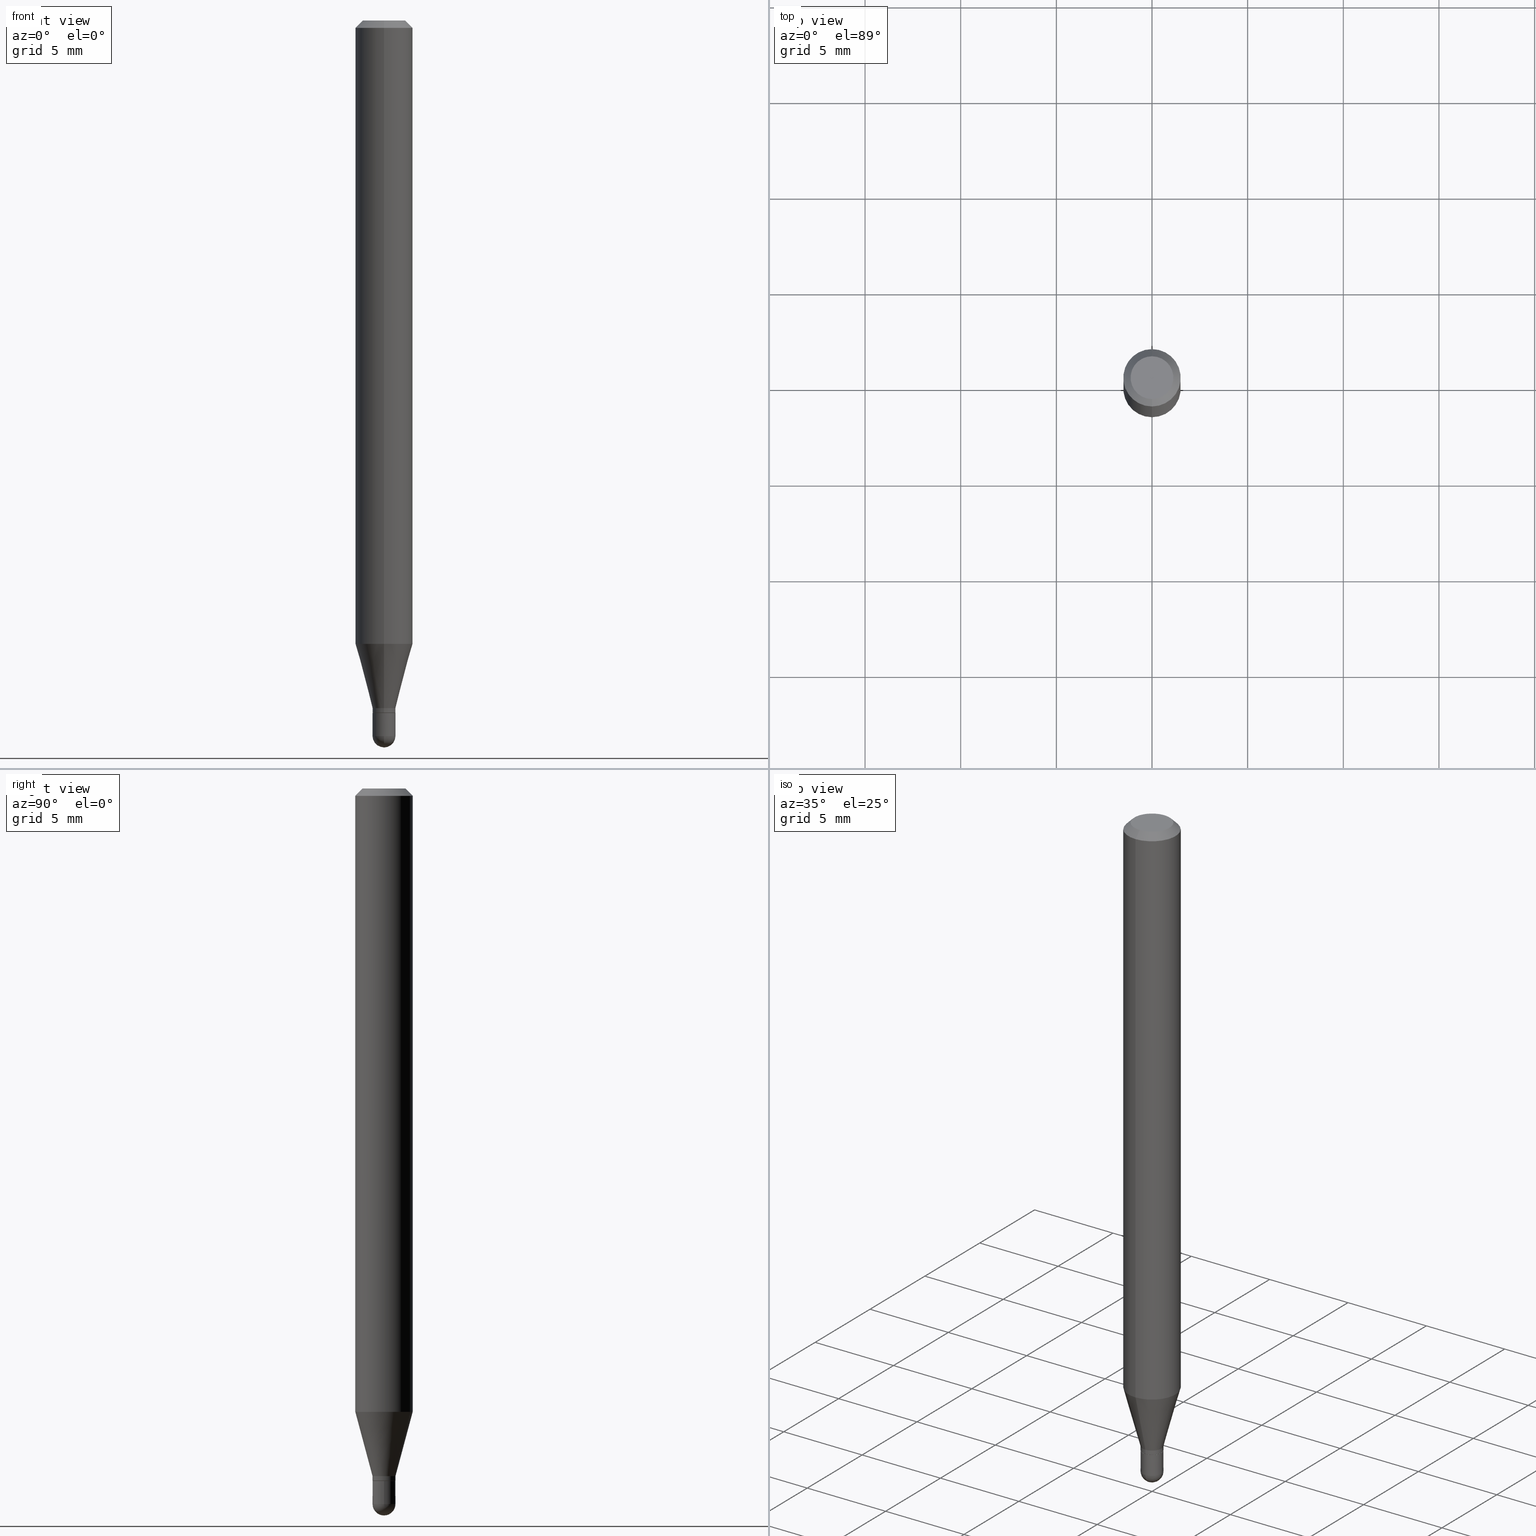
[diagram: canonical four-view strip — front | top / right | iso, engineering-drawing reading convention]
A machine part, canonical four-view strip (front | top / right | iso — engineering-drawing reading convention). The complete STEP part file that produces these views, byte-faithful:
ISO-10303-21;
HEADER;
FILE_DESCRIPTION (( 'STEP AP203' ),
    '1' );
FILE_NAME ('02917.STEP',
    '2024-03-07T21:41:53',
    ( '' ),
    ( '' ),
    'SwSTEP 2.0',
    'SolidWorks 2023',
    '' );
FILE_SCHEMA (( 'CONFIG_CONTROL_DESIGN' ));
ENDSEC;

DATA;
#1 =( NAMED_UNIT ( * ) PLANE_ANGLE_UNIT ( ) SI_UNIT ( $, .RADIAN. ) );
#2 = CC_DESIGN_DATE_AND_TIME_ASSIGNMENT ( #146, #310, ( #301 ) ) ;
#3 = EDGE_LOOP ( 'NONE', ( #392, #244 ) ) ;
#4 = EDGE_CURVE ( 'NONE', #314, #163, #479, .T. ) ;
#5 = DIRECTION ( 'NONE',  ( -2.445525843005388911E-29, 3.491399658870209934E-15, 1.000000000000000000 ) ) ;
#6 = AXIS2_PLACEMENT_3D ( 'NONE', #458, #332, #97 ) ;
#7 = CALENDAR_DATE ( 2024, 7, 3 ) ;
#8 = DIRECTION ( 'NONE',  ( -2.445525843005388911E-29, 3.491399658870209934E-15, 1.000000000000000000 ) ) ;
#9 = EDGE_CURVE ( 'NONE', #298, #210, #202, .T. ) ;
#10 = PERSON_AND_ORGANIZATION_ROLE ( 'design_owner' ) ;
#11 = FACE_OUTER_BOUND ( 'NONE', #59, .T. ) ;
#12 = PERSON_AND_ORGANIZATION ( #424, #39 ) ;
#13 = CARTESIAN_POINT ( 'NONE',  ( -1.647979191933610942E-16, -0.02360000000000497811, -1.424700000000000077 ) ) ;
#14 = AXIS2_PLACEMENT_3D ( 'NONE', #237, #496, #25 ) ;
#15 = CC_DESIGN_APPROVAL ( #149, ( #164 ) ) ;
#16 = CARTESIAN_POINT ( 'NONE',  ( 3.485363431451280039E-29, -4.975942793821823264E-15, -1.425199999999999800 ) ) ;
#17 = EDGE_LOOP ( 'NONE', ( #288, #414, #26, #112 ) ) ;
#18 = ORIENTED_EDGE ( 'NONE', *, *, #266, .T. ) ;
#19 = LINE ( 'NONE', #220, #268 ) ;
#20 = CARTESIAN_POINT ( 'NONE',  ( 3.460663620436925760E-29, -4.940679657267234078E-15, -1.415099999999999802 ) ) ;
#21 = ADVANCED_FACE ( 'NONE', ( #318 ), #484, .F. ) ;
#22 = EDGE_LOOP ( 'NONE', ( #194, #52, #208, #212 ) ) ;
#23 = ORIENTED_EDGE ( 'NONE', *, *, #465, .F. ) ;
#24 = PLANE ( 'NONE',  #6 ) ;
#25 = DIRECTION ( 'NONE',  ( -6.982962677686265922E-15, -1.000000000000000000, 3.491399658870209934E-15 ) ) ;
#26 = ORIENTED_EDGE ( 'NONE', *, *, #176, .F. ) ;
#27 = DIRECTION ( 'NONE',  ( 1.000000000000000000, -6.982962677686258033E-15, 0.000000000000000000 ) ) ;
#28 = CIRCLE ( 'NONE', #35, 0.02359999999999991965 ) ;
#29 = ORIENTED_EDGE ( 'NONE', *, *, #31, .T. ) ;
#30 = CARTESIAN_POINT ( 'NONE',  ( 3.485282142575056435E-29, -4.976059204119250988E-15, -1.425199999999999800 ) ) ;
#31 = EDGE_CURVE ( 'NONE', #331, #498, #355, .T. ) ;
#32 = DIRECTION ( 'NONE',  ( -6.982962677686266711E-15, -1.000000000000000000, 0.000000000000000000 ) ) ;
#33 = CARTESIAN_POINT ( 'NONE',  ( 0.000000000000000000, 0.000000000000000000, 0.000000000000000000 ) ) ;
#34 = CONICAL_SURFACE ( 'NONE', #311, 0.02359999999999991965, 0.2617993877991507401 ) ;
#35 = AXIS2_PLACEMENT_3D ( 'NONE', #129, #451, #410 ) ;
#36 = SPHERICAL_SURFACE ( 'NONE', #93, 0.02359999999999999598 ) ;
#37 = DIRECTION ( 'NONE',  ( -2.445525843005388911E-29, 3.491399658870209934E-15, 1.000000000000000000 ) ) ;
#38 = DIRECTION ( 'NONE',  ( -2.445525843005388911E-29, 3.491399658870209934E-15, 1.000000000000000000 ) ) ;
#39 = ORGANIZATION ( 'UNSPECIFIED', 'UNSPECIFIED', '' ) ;
#40 = COORDINATED_UNIVERSAL_TIME_OFFSET ( 5, 0, .BEHIND. ) ;
#41 = CYLINDRICAL_SURFACE ( 'NONE', #101, 0.05904999999999999832 ) ;
#42 = VERTEX_POINT ( 'NONE', #68 ) ;
#43 = CALENDAR_DATE ( 2024, 7, 3 ) ;
#44 = CARTESIAN_POINT ( 'NONE',  ( 0.02360000000000000292, -5.140857123312646447E-15, -1.425199999999999800 ) ) ;
#45 = EDGE_CURVE ( 'NONE', #367, #158, #387, .T. ) ;
#46 = DIRECTION ( 'NONE',  ( -6.982962677686265922E-15, -1.000000000000000000, 3.505890868245046092E-15 ) ) ;
#47 = ORIENTED_EDGE ( 'NONE', *, *, #198, .T. ) ;
#48 = CARTESIAN_POINT ( 'NONE',  ( 0.000000000000000000, 0.000000000000000000, 0.000000000000000000 ) ) ;
#49 = ORIENTED_EDGE ( 'NONE', *, *, #327, .F. ) ;
#50 = APPROVAL_ROLE ( '' ) ;
#51 = DIRECTION ( 'NONE',  ( -4.937700262164695559E-15, -0.7071067811865662245, 0.7071067811865289210 ) ) ;
#52 = ORIENTED_EDGE ( 'NONE', *, *, #122, .T. ) ;
#53 = CC_DESIGN_SECURITY_CLASSIFICATION ( #301, ( #164 ) ) ;
#54 = DIRECTION ( 'NONE',  ( 1.000000000000000000, -6.982962677686258033E-15, 0.000000000000000000 ) ) ;
#55 = ADVANCED_FACE ( 'NONE', ( #205 ), #133, .F. ) ;
#56 = ORIENTED_EDGE ( 'NONE', *, *, #425, .F. ) ;
#57 = EDGE_LOOP ( 'NONE', ( #324, #336, #168, #328 ) ) ;
#58 = DIRECTION ( 'NONE',  ( 1.000000000000000000, -6.982962677686258033E-15, 0.000000000000000000 ) ) ;
#59 = EDGE_LOOP ( 'NONE', ( #47, #295, #489, #379 ) ) ;
#60 = FACE_OUTER_BOUND ( 'NONE', #238, .T. ) ;
#61 = CARTESIAN_POINT ( 'NONE',  ( 4.123439461173743285E-16, 0.05904999999999994975, -0.01500000000000029955 ) ) ;
#62 = AXIS2_PLACEMENT_3D ( 'NONE', #468, #270, #265 ) ;
#63 = DIRECTION ( 'NONE',  ( -6.982962677686265922E-15, -1.000000000000000000, 0.000000000000000000 ) ) ;
#64 = CARTESIAN_POINT ( 'NONE',  ( -1.647979191933606997E-16, -0.02360000000000486015, -1.415099999999999802 ) ) ;
#65 = PRODUCT_RELATED_PRODUCT_CATEGORY ( 'detail', '', ( #117 ) ) ;
#66 = CIRCLE ( 'NONE', #357, 0.02359999999999992312 ) ;
#67 = DIRECTION ( 'NONE',  ( 1.000000000000000000, -6.982962677686265922E-15, 4.883557194083112901E-29 ) ) ;
#68 = CARTESIAN_POINT ( 'NONE',  ( -3.536586717851222218E-16, -0.04404999999999999888, 6.212774405424533259E-17 ) ) ;
#69 = CARTESIAN_POINT ( 'NONE',  ( 0.000000000000000000, 0.000000000000000000, 0.000000000000000000 ) ) ;
#70 = LOCAL_TIME ( 16, 41, 53.00000000000000000, #277 ) ;
#71 = VERTEX_POINT ( 'NONE', #374 ) ;
#72 = DATE_TIME_ROLE ( 'creation_date' ) ;
#73 = LINE ( 'NONE', #408, #250 ) ;
#74 = ORIENTED_EDGE ( 'NONE', *, *, #377, .T. ) ;
#75 = DIRECTION ( 'NONE',  ( -2.445525843005389191E-29, 3.491399658870209934E-15, 1.000000000000000000 ) ) ;
#76 = CALENDAR_DATE ( 2024, 7, 3 ) ;
#77 = CYLINDRICAL_SURFACE ( 'NONE', #434, 0.05904999999999999832 ) ;
#78 = ORIENTED_EDGE ( 'NONE', *, *, #473, .F. ) ;
#79 = APPROVAL_STATUS ( 'not_yet_approved' ) ;
#80 = DIRECTION ( 'NONE',  ( -6.982962677686266711E-15, -1.000000000000000000, 0.000000000000000000 ) ) ;
#81 = AXIS2_PLACEMENT_3D ( 'NONE', #364, #201, #483 ) ;
#82 = AXIS2_PLACEMENT_3D ( 'NONE', #258, #289, #54 ) ;
#83 = CALENDAR_DATE ( 2024, 7, 3 ) ;
#84 = CARTESIAN_POINT ( 'NONE',  ( 0.000000000000000000, 0.000000000000000000, 0.000000000000000000 ) ) ;
#85 = COORDINATED_UNIVERSAL_TIME_OFFSET ( 5, 0, .BEHIND. ) ;
#86 = DIRECTION ( 'NONE',  ( 1.839019923739603471E-15, 0.2588190451025254024, 0.9659258262890670910 ) ) ;
#87 = APPROVAL ( #195, 'UNSPECIFIED' ) ;
#88 = EDGE_CURVE ( 'NONE', #378, #367, #300, .T. ) ;
#89 = ORIENTED_EDGE ( 'NONE', *, *, #88, .F. ) ;
#90 = CARTESIAN_POINT ( 'NONE',  ( 3.598934624665149250E-29, -5.144096437892519397E-15, -1.472499999999999920 ) ) ;
#91 = CIRCLE ( 'NONE', #224, 0.02360000000000000292 ) ;
#92 = ORIENTED_EDGE ( 'NONE', *, *, #176, .T. ) ;
#93 = AXIS2_PLACEMENT_3D ( 'NONE', #184, #67, #426 ) ;
#94 = CARTESIAN_POINT ( 'NONE',  ( 3.600952817107612585E-29, -5.141206271446529958E-15, -1.472499999999999698 ) ) ;
#95 = DIRECTION ( 'NONE',  ( -6.982962677686265922E-15, -1.000000000000000000, 0.000000000000000000 ) ) ;
#96 = ORIENTED_EDGE ( 'NONE', *, *, #177, .T. ) ;
#97 = DIRECTION ( 'NONE',  ( -1.000000000000000000, 6.982962677686265922E-15, -4.876176775795935793E-29 ) ) ;
#98 = ORIENTED_EDGE ( 'NONE', *, *, #485, .T. ) ;
#99 = DIRECTION ( 'NONE',  ( 1.000000000000000000, -6.982962677686258033E-15, 0.000000000000000000 ) ) ;
#100 = ORIENTED_EDGE ( 'NONE', *, *, #160, .T. ) ;
#101 = AXIS2_PLACEMENT_3D ( 'NONE', #48, #275, #246 ) ;
#102 = LINE ( 'NONE', #61, #435 ) ;
#103 = CC_DESIGN_APPROVAL ( #326, ( #463 ) ) ;
#104 = FACE_OUTER_BOUND ( 'NONE', #369, .T. ) ;
#105 = FACE_OUTER_BOUND ( 'NONE', #22, .T. ) ;
#106 = MANIFOLD_SOLID_BREP ( 'Body-Move/Copy2[2]', #197 ) ;
#107 =( NAMED_UNIT ( * ) SI_UNIT ( $, .STERADIAN. ) SOLID_ANGLE_UNIT ( ) );
#108 = CIRCLE ( 'NONE', #476, 0.02360000000000000292 ) ;
#109 = DIRECTION ( 'NONE',  ( -2.445525843005388911E-29, 3.491399658870209934E-15, 1.000000000000000000 ) ) ;
#110 = AXIS2_PLACEMENT_3D ( 'NONE', #90, #174, #128 ) ;
#111 = AXIS2_PLACEMENT_3D ( 'NONE', #416, #368, #136 ) ;
#112 = ORIENTED_EDGE ( 'NONE', *, *, #45, .F. ) ;
#113 = COORDINATED_UNIVERSAL_TIME_OFFSET ( 5, 0, .BEHIND. ) ;
#114 = DIRECTION ( 'NONE',  ( -6.982962677686266711E-15, -1.000000000000000000, 0.000000000000000000 ) ) ;
#115 = APPROVAL_STATUS ( 'not_yet_approved' ) ;
#116 = CARTESIAN_POINT ( 'NONE',  ( 0.000000000000000000, 0.000000000000000000, 0.000000000000000000 ) ) ;
#117 = PRODUCT ( '02917', '02917', '', ( #316 ) ) ;
#118 = CYLINDRICAL_SURFACE ( 'NONE', #510, 0.02360000000000000292 ) ;
#119 = VECTOR ( 'NONE', #139, 39.37007874015748143 ) ;
#120 = ADVANCED_FACE ( 'NONE', ( #124 ), #401, .T. ) ;
#121 = DIRECTION ( 'NONE',  ( -6.982962677686265922E-15, -1.000000000000000000, 4.626330217890369336E-15 ) ) ;
#122 = EDGE_CURVE ( 'NONE', #314, #170, #272, .T. ) ;
#123 = VERTEX_POINT ( 'NONE', #13 ) ;
#124 = FACE_OUTER_BOUND ( 'NONE', #247, .T. ) ;
#125 = MANIFOLD_SOLID_BREP ( 'Body-Move/Copy2[1]', #207 ) ;
#126 = ORIENTED_EDGE ( 'NONE', *, *, #151, .T. ) ;
#127 = ORIENTED_EDGE ( 'NONE', *, *, #252, .F. ) ;
#128 = DIRECTION ( 'NONE',  ( -6.982962677686265922E-15, -1.000000000000000000, 0.000000000000000000 ) ) ;
#129 = CARTESIAN_POINT ( 'NONE',  ( 3.460663620436925760E-29, -4.940679657267234078E-15, -1.415099999999999802 ) ) ;
#130 = ADVANCED_FACE ( 'NONE', ( #243 ), #77, .T. ) ;
#131 = ORIENTED_EDGE ( 'NONE', *, *, #493, .T. ) ;
#132 = DIRECTION ( 'NONE',  ( -2.445468806185136597E-29, 3.491481338843145583E-15, 1.000000000000000000 ) ) ;
#133 = PLANE ( 'NONE',  #375 ) ;
#134 = CARTESIAN_POINT ( 'NONE',  ( -1.647979191933953110E-16, -0.02359999999999991965, 8.239703194933667770E-17 ) ) ;
#135 = CIRCLE ( 'NONE', #411, 0.02359999999999999598 ) ;
#136 = DIRECTION ( 'NONE',  ( 7.105427357601001070E-15, 1.000000000000000000, 0.000000000000000000 ) ) ;
#137 = LOCAL_TIME ( 16, 41, 53.00000000000000000, #159 ) ;
#138 = ADVANCED_FACE ( 'NONE', ( #315 ), #206, .T. ) ;
#139 = DIRECTION ( 'NONE',  ( -2.445525843005389191E-29, 3.491399658870209934E-15, 1.000000000000000000 ) ) ;
#140 = CARTESIAN_POINT ( 'NONE',  ( 2.936317855528941933E-16, 0.02359999999999497916, -1.415099999999999802 ) ) ;
#141 = AXIS2_PLACEMENT_3D ( 'NONE', #446, #196, #397 ) ;
#142 = ADVANCED_BREP_SHAPE_REPRESENTATION ( '02917', ( #125, #106, #261 ), #445 ) ;
#143 = DIRECTION ( 'NONE',  ( 2.445525843005388911E-29, -3.491399658870209934E-15, -1.000000000000000000 ) ) ;
#144 = DATE_AND_TIME ( #350, #412 ) ;
#145 = ORIENTED_EDGE ( 'NONE', *, *, #179, .F. ) ;
#146 = DATE_AND_TIME ( #43, #70 ) ;
#147 = DIRECTION ( 'NONE',  ( -6.982962677686265922E-15, -1.000000000000000000, 0.000000000000000000 ) ) ;
#148 = VECTOR ( 'NONE', #442, 39.37007874015748854 ) ;
#149 = APPROVAL ( #115, 'UNSPECIFIED' ) ;
#150 = CIRCLE ( 'NONE', #376, 0.04404999999999999888 ) ;
#151 = EDGE_CURVE ( 'NONE', #42, #158, #278, .T. ) ;
#152 = DATE_AND_TIME ( #7, #137 ) ;
#153 = DIRECTION ( 'NONE',  ( -2.445525843005388911E-29, 3.491399658870209934E-15, 1.000000000000000000 ) ) ;
#154 = EDGE_LOOP ( 'NONE', ( #216, #474, #488, #74, #56 ) ) ;
#155 = PERSON_AND_ORGANIZATION_ROLE ( 'creator' ) ;
#156 = CARTESIAN_POINT ( 'NONE',  ( 3.485363431451280039E-29, -4.975942793821823264E-15, -1.425199999999999800 ) ) ;
#157 = EDGE_LOOP ( 'NONE', ( #457, #233, #173, #127 ) ) ;
#158 = VERTEX_POINT ( 'NONE', #356 ) ;
#159 = COORDINATED_UNIVERSAL_TIME_OFFSET ( 5, 0, .BEHIND. ) ;
#160 = EDGE_CURVE ( 'NONE', #498, #378, #448, .T. ) ;
#161 = DIRECTION ( 'NONE',  ( -2.445525843005388911E-29, 3.491399658870209934E-15, 1.000000000000000000 ) ) ;
#162 = ORIENTED_EDGE ( 'NONE', *, *, #343, .F. ) ;
#163 = VERTEX_POINT ( 'NONE', #478 ) ;
#164 = PRODUCT_DEFINITION_FORMATION_WITH_SPECIFIED_SOURCE ( 'ANY', '', #117, .NOT_KNOWN. ) ;
#165 = CARTESIAN_POINT ( 'NONE',  ( -0.02360000000000000292, -4.890944652143507548E-15, -1.425199999999999800 ) ) ;
#166 = VERTEX_POINT ( 'NONE', #490 ) ;
#167 = DIRECTION ( 'NONE',  ( -6.982962677686265922E-15, -1.000000000000000000, 0.000000000000000000 ) ) ;
#168 = ORIENTED_EDGE ( 'NONE', *, *, #338, .T. ) ;
#169 = ADVANCED_FACE ( 'NONE', ( #240 ), #41, .T. ) ;
#170 = VERTEX_POINT ( 'NONE', #236 ) ;
#171 = CARTESIAN_POINT ( 'NONE',  ( -1.647979191933606997E-16, -0.02360000000000486015, -1.415099999999999802 ) ) ;
#172 = CIRCLE ( 'NONE', #62, 0.04404999999999999888 ) ;
#173 = ORIENTED_EDGE ( 'NONE', *, *, #503, .F. ) ;
#174 = DIRECTION ( 'NONE',  ( 1.000000000000000000, -6.982962677686265922E-15, 4.883557194083112901E-29 ) ) ;
#175 = DIRECTION ( 'NONE',  ( -2.445468806185136597E-29, 3.491481338843145583E-15, 1.000000000000000000 ) ) ;
#176 = EDGE_CURVE ( 'NONE', #158, #363, #267, .T. ) ;
#177 = EDGE_CURVE ( 'NONE', #363, #158, #365, .T. ) ;
#178 = CARTESIAN_POINT ( 'NONE',  ( 1.676880856394196071E-16, 0.02359999999999485773, -1.472499999999999698 ) ) ;
#179 = EDGE_CURVE ( 'NONE', #367, #378, #444, .T. ) ;
#180 = DIRECTION ( 'NONE',  ( -2.445525843005388911E-29, 3.491399658870209934E-15, 1.000000000000000000 ) ) ;
#181 = AXIS2_PLACEMENT_3D ( 'NONE', #459, #296, #27 ) ;
#182 = ORIENTED_EDGE ( 'NONE', *, *, #287, .F. ) ;
#183 =( LENGTH_UNIT ( ) NAMED_UNIT ( * ) SI_UNIT ( $, .METRE. ) );
#184 = CARTESIAN_POINT ( 'NONE',  ( 3.598934624665149250E-29, -5.144096437892519397E-15, -1.472499999999999920 ) ) ;
#185 = ADVANCED_FACE ( 'NONE', ( #204 ), #118, .T. ) ;
#186 =( CONVERSION_BASED_UNIT ( 'INCH', #467 ) LENGTH_UNIT ( ) NAMED_UNIT ( #259 ) );
#187 = AXIS2_PLACEMENT_3D ( 'NONE', #16, #232, #80 ) ;
#188 = FACE_OUTER_BOUND ( 'NONE', #154, .T. ) ;
#189 = CARTESIAN_POINT ( 'NONE',  ( -0.02360000000000000292, 1.676880856393836646E-16, -1.160868681300157803E-30 ) ) ;
#190 = VERTEX_POINT ( 'NONE', #44 ) ;
#191 = PERSON_AND_ORGANIZATION_ROLE ( 'design_supplier' ) ;
#192 = FACE_OUTER_BOUND ( 'NONE', #230, .T. ) ;
#193 = EDGE_CURVE ( 'NONE', #170, #123, #73, .T. ) ;
#194 = ORIENTED_EDGE ( 'NONE', *, *, #4, .F. ) ;
#195 = APPROVAL_STATUS ( 'not_yet_approved' ) ;
#196 = DIRECTION ( 'NONE',  ( -2.445525843005388911E-29, 3.491399658870209934E-15, 1.000000000000000000 ) ) ;
#197 = CLOSED_SHELL ( 'NONE', ( #120, #221, #383, #169, #219, #234, #130, #437, #55, #21, #432, #138 ) ) ;
#198 = EDGE_CURVE ( 'NONE', #170, #314, #282, .T. ) ;
#199 = CONICAL_SURFACE ( 'NONE', #313, 0.05904999999999999832, 0.7853981633974483900 ) ;
#200 = DATE_AND_TIME ( #76, #390 ) ;
#201 = DIRECTION ( 'NONE',  ( -2.445525843005388911E-29, 3.491399658870209934E-15, 1.000000000000000000 ) ) ;
#202 = LINE ( 'NONE', #189, #305 ) ;
#203 = SECURITY_CLASSIFICATION_LEVEL ( 'unclassified' ) ;
#204 = FACE_OUTER_BOUND ( 'NONE', #297, .T. ) ;
#205 = FACE_OUTER_BOUND ( 'NONE', #418, .T. ) ;
#206 = CYLINDRICAL_SURFACE ( 'NONE', #81, 0.02359999999999991965 ) ;
#207 = CLOSED_SHELL ( 'NONE', ( #185, #223, #405, #447, #449 ) ) ;
#208 = ORIENTED_EDGE ( 'NONE', *, *, #193, .T. ) ;
#209 = CIRCLE ( 'NONE', #291, 0.02359999999999992312 ) ;
#210 = VERTEX_POINT ( 'NONE', #165 ) ;
#211 = LINE ( 'NONE', #134, #400 ) ;
#212 = ORIENTED_EDGE ( 'NONE', *, *, #472, .F. ) ;
#213 = CARTESIAN_POINT ( 'NONE',  ( 4.195754854663702585E-16, 0.05904999999999549498, -1.282798798871683799 ) ) ;
#214 = SPHERICAL_SURFACE ( 'NONE', #110, 0.02359999999999999598 ) ;
#215 = AXIS2_PLACEMENT_3D ( 'NONE', #30, #175, #337 ) ;
#216 = ORIENTED_EDGE ( 'NONE', *, *, #9, .F. ) ;
#217 = LINE ( 'NONE', #262, #283 ) ;
#218 = CC_DESIGN_PERSON_AND_ORGANIZATION_ASSIGNMENT ( #12, #10, ( #117 ) ) ;
#219 = ADVANCED_FACE ( 'NONE', ( #192 ), #322, .T. ) ;
#220 = CARTESIAN_POINT ( 'NONE',  ( 0.02360000000000000292, -1.647979191933959273E-16, 1.150777719087840955E-30 ) ) ;
#221 = ADVANCED_FACE ( 'NONE', ( #11 ), #340, .T. ) ;
#222 = DIRECTION ( 'NONE',  ( -2.445468806185136597E-29, 3.491481338843145583E-15, 1.000000000000000000 ) ) ;
#223 = ADVANCED_FACE ( 'NONE', ( #335 ), #214, .T. ) ;
#224 = AXIS2_PLACEMENT_3D ( 'NONE', #339, #132, #58 ) ;
#225 = EDGE_CURVE ( 'NONE', #402, #71, #135, .T. ) ;
#226 = DIRECTION ( 'NONE',  ( 1.000000000000000000, -6.982962677686258033E-15, 0.000000000000000000 ) ) ;
#227 = DIRECTION ( 'NONE',  ( 6.982962677686265922E-15, 1.000000000000000000, -3.505890868245046092E-15 ) ) ;
#228 = LINE ( 'NONE', #64, #423 ) ;
#229 = LOCAL_TIME ( 16, 41, 53.00000000000000000, #85 ) ;
#230 = EDGE_LOOP ( 'NONE', ( #29, #100, #145, #415 ) ) ;
#231 = CC_DESIGN_PERSON_AND_ORGANIZATION_ASSIGNMENT ( #242, #191, ( #164 ) ) ;
#232 = DIRECTION ( 'NONE',  ( -2.445525843005388911E-29, 3.491399658870209934E-15, 1.000000000000000000 ) ) ;
#233 = ORIENTED_EDGE ( 'NONE', *, *, #327, .T. ) ;
#234 = ADVANCED_FACE ( 'NONE', ( #373 ), #34, .T. ) ;
#235 = PERSON_AND_ORGANIZATION ( #424, #39 ) ;
#236 = CARTESIAN_POINT ( 'NONE',  ( -1.613064378545178652E-16, -0.02310000000000497419, -1.425199999999999800 ) ) ;
#237 = CARTESIAN_POINT ( 'NONE',  ( 3.485363431451280039E-29, -4.975942793821823264E-15, -1.425199999999999800 ) ) ;
#238 = EDGE_LOOP ( 'NONE', ( #470, #443 ) ) ;
#239 = APPROVAL_DATE_TIME ( #152, #87 ) ;
#240 = FACE_OUTER_BOUND ( 'NONE', #17, .T. ) ;
#241 = VECTOR ( 'NONE', #75, 39.37007874015748143 ) ;
#242 = PERSON_AND_ORGANIZATION ( #424, #39 ) ;
#243 = FACE_OUTER_BOUND ( 'NONE', #279, .T. ) ;
#244 = ORIENTED_EDGE ( 'NONE', *, *, #122, .F. ) ;
#245 = DIRECTION ( 'NONE',  ( 0.000000000000000000, 0.000000000000000000, 1.000000000000000000 ) ) ;
#246 = DIRECTION ( 'NONE',  ( -6.982962677686265922E-15, -1.000000000000000000, 3.491399658870209934E-15 ) ) ;
#247 = EDGE_LOOP ( 'NONE', ( #98, #452, #284, #372 ) ) ;
#248 = DIRECTION ( 'NONE',  ( -1.000000000000000000, 6.982962677686265922E-15, -4.883557194083112340E-29 ) ) ;
#249 = DIRECTION ( 'NONE',  ( 2.445525843005388631E-29, -3.491399658870209934E-15, -1.000000000000000000 ) ) ;
#250 = VECTOR ( 'NONE', #51, 39.37007874015748143 ) ;
#251 = CONICAL_SURFACE ( 'NONE', #429, 0.02309999999999999554, 0.7853981633974781440 ) ;
#252 = EDGE_CURVE ( 'NONE', #71, #166, #91, .T. ) ;
#253 = ORIENTED_EDGE ( 'NONE', *, *, #160, .F. ) ;
#254 = CARTESIAN_POINT ( 'NONE',  ( -4.123439461173428234E-16, -0.05905000000000449473, -1.282798798871683355 ) ) ;
#255 = ORIENTED_EDGE ( 'NONE', *, *, #465, .T. ) ;
#256 = DIRECTION ( 'NONE',  ( -2.445525843005389191E-29, 3.491399658870209934E-15, 1.000000000000000000 ) ) ;
#257 = ORIENTED_EDGE ( 'NONE', *, *, #45, .T. ) ;
#258 = CARTESIAN_POINT ( 'NONE',  ( 3.600952817107612585E-29, -5.141206271446529958E-15, -1.472499999999999698 ) ) ;
#259 = DIMENSIONAL_EXPONENTS ( 1.000000000000000000, 0.000000000000000000, 0.000000000000000000, 0.000000000000000000, 0.000000000000000000, 0.000000000000000000, 0.000000000000000000 ) ;
#260 = AXIS2_PLACEMENT_3D ( 'NONE', #395, #153, #286 ) ;
#261 = AXIS2_PLACEMENT_3D ( 'NONE', #69, #245, #394 ) ;
#262 = CARTESIAN_POINT ( 'NONE',  ( 1.676880856393830483E-16, 0.02359999999999991965, -8.239703194933667770E-17 ) ) ;
#263 = EDGE_CURVE ( 'NONE', #190, #210, #430, .T. ) ;
#264 = CARTESIAN_POINT ( 'NONE',  ( 3.668288764508105647E-31, -5.237099488305346678E-17, -0.01500000000000009139 ) ) ;
#265 = DIRECTION ( 'NONE',  ( -6.982962677686265133E-15, -1.000000000000000000, 3.491399658870209540E-15 ) ) ;
#266 = EDGE_CURVE ( 'NONE', #498, #331, #28, .T. ) ;
#267 = CIRCLE ( 'NONE', #141, 0.05904999999999999832 ) ;
#268 = VECTOR ( 'NONE', #422, 39.37007874015748143 ) ;
#269 = CARTESIAN_POINT ( 'NONE',  ( 3.484140668529777008E-29, -4.974197093992387945E-15, -1.424700000000000077 ) ) ;
#270 = DIRECTION ( 'NONE',  ( -2.445525843005388911E-29, 3.491399658870209934E-15, 1.000000000000000000 ) ) ;
#271 = CC_DESIGN_PERSON_AND_ORGANIZATION_ASSIGNMENT ( #407, #477, ( #164 ) ) ;
#272 = CIRCLE ( 'NONE', #464, 0.02309999999999999554 ) ;
#273 = CC_DESIGN_APPROVAL ( #87, ( #301 ) ) ;
#274 = APPLICATION_PROTOCOL_DEFINITION ( 'international standard', 'config_control_design', 1994, #502 ) ;
#275 = DIRECTION ( 'NONE',  ( -2.445525843005388911E-29, 3.491399658870209934E-15, 1.000000000000000000 ) ) ;
#276 = ORIENTED_EDGE ( 'NONE', *, *, #151, .F. ) ;
#277 = COORDINATED_UNIVERSAL_TIME_OFFSET ( 5, 0, .BEHIND. ) ;
#278 = LINE ( 'NONE', #487, #475 ) ;
#279 = EDGE_LOOP ( 'NONE', ( #78, #500, #257, #330 ) ) ;
#280 = ORIENTED_EDGE ( 'NONE', *, *, #493, .F. ) ;
#281 = CARTESIAN_POINT ( 'NONE',  ( 3.485363431451280039E-29, -4.975942793821823264E-15, -1.425199999999999800 ) ) ;
#282 = CIRCLE ( 'NONE', #187, 0.02309999999999999554 ) ;
#283 = VECTOR ( 'NONE', #380, 39.37007874015748143 ) ;
#284 = ORIENTED_EDGE ( 'NONE', *, *, #31, .F. ) ;
#285 = DIRECTION ( 'NONE',  ( -2.445525843005388911E-29, 3.491399658870209934E-15, 1.000000000000000000 ) ) ;
#286 = DIRECTION ( 'NONE',  ( -6.982962677686265922E-15, -1.000000000000000000, 4.626330217890369336E-15 ) ) ;
#287 = EDGE_CURVE ( 'NONE', #292, #298, #306, .T. ) ;
#288 = ORIENTED_EDGE ( 'NONE', *, *, #179, .T. ) ;
#289 = DIRECTION ( 'NONE',  ( -2.445468806185136597E-29, 3.491481338843145583E-15, 1.000000000000000000 ) ) ;
#290 = AXIS2_PLACEMENT_3D ( 'NONE', #20, #454, #95 ) ;
#291 = AXIS2_PLACEMENT_3D ( 'NONE', #269, #180, #341 ) ;
#292 = VERTEX_POINT ( 'NONE', #178 ) ;
#293 = CARTESIAN_POINT ( 'NONE',  ( 4.195754854663707023E-16, 0.05904999999999994975, -0.01500000000000029955 ) ) ;
#294 = UNCERTAINTY_MEASURE_WITH_UNIT (LENGTH_MEASURE( 1.000000000000000082E-05 ), #186, 'distance_accuracy_value', 'NONE');
#295 = ORIENTED_EDGE ( 'NONE', *, *, #4, .T. ) ;
#296 = DIRECTION ( 'NONE',  ( -2.445468806185136597E-29, 3.491481338843145583E-15, 1.000000000000000000 ) ) ;
#297 = EDGE_LOOP ( 'NONE', ( #309, #450, #346, #421, #334 ) ) ;
#298 = VERTEX_POINT ( 'NONE', #453 ) ;
#299 = FACE_OUTER_BOUND ( 'NONE', #491, .T. ) ;
#300 = CIRCLE ( 'NONE', #399, 0.05904999999999999832 ) ;
#301 = SECURITY_CLASSIFICATION ( '', '', #203 ) ;
#302 = FACE_OUTER_BOUND ( 'NONE', #461, .T. ) ;
#303 = CARTESIAN_POINT ( 'NONE',  ( 3.484140668529777008E-29, -4.974197093992387945E-15, -1.424700000000000077 ) ) ;
#304 = CC_DESIGN_PERSON_AND_ORGANIZATION_ASSIGNMENT ( #482, #440, ( #301 ) ) ;
#305 = VECTOR ( 'NONE', #360, 39.37007874015748143 ) ;
#306 = CIRCLE ( 'NONE', #82, 0.02360000000000000292 ) ;
#307 = DIRECTION ( 'NONE',  ( -6.982962677686266711E-15, -1.000000000000000000, 0.000000000000000000 ) ) ;
#308 = PERSON_AND_ORGANIZATION ( #424, #39 ) ;
#309 = ORIENTED_EDGE ( 'NONE', *, *, #287, .T. ) ;
#310 = DATE_TIME_ROLE ( 'classification_date' ) ;
#311 = AXIS2_PLACEMENT_3D ( 'NONE', #492, #499, #167 ) ;
#312 = DIRECTION ( 'NONE',  ( -6.982962677686265922E-15, -1.000000000000000000, 3.491399658870209934E-15 ) ) ;
#313 = AXIS2_PLACEMENT_3D ( 'NONE', #264, #143, #227 ) ;
#314 = VERTEX_POINT ( 'NONE', #505 ) ;
#315 = FACE_OUTER_BOUND ( 'NONE', #57, .T. ) ;
#316 = MECHANICAL_CONTEXT ( 'NONE', #471, 'mechanical' ) ;
#317 = DIRECTION ( 'NONE',  ( -2.445525843005388911E-29, 3.491399658870209934E-15, 1.000000000000000000 ) ) ;
#318 = FACE_OUTER_BOUND ( 'NONE', #3, .T. ) ;
#319 = APPROVAL_DATE_TIME ( #144, #326 ) ;
#320 = DIRECTION ( 'NONE',  ( 1.000000000000000000, -6.982962677686267499E-15, 4.876176775795935793E-29 ) ) ;
#321 = CARTESIAN_POINT ( 'NONE',  ( 3.075995059520799729E-16, 0.04404999999999999888, -1.996303604327264309E-16 ) ) ;
#322 = CONICAL_SURFACE ( 'NONE', #384, 0.02359999999999991965, 0.2617993877991507401 ) ;
#323 = APPROVAL_PERSON_ORGANIZATION ( #353, #326, #486 ) ;
#324 = ORIENTED_EDGE ( 'NONE', *, *, #417, .F. ) ;
#325 = CARTESIAN_POINT ( 'NONE',  ( 3.668288764508105647E-31, -5.237099488305346678E-17, -0.01500000000000009139 ) ) ;
#326 = APPROVAL ( #79, 'UNSPECIFIED' ) ;
#327 = EDGE_CURVE ( 'NONE', #402, #292, #456, .T. ) ;
#328 = ORIENTED_EDGE ( 'NONE', *, *, #266, .F. ) ;
#329 = CARTESIAN_POINT ( 'NONE',  ( 3.598934624665149250E-29, -5.144096437892519397E-15, -1.472499999999999920 ) ) ;
#330 = ORIENTED_EDGE ( 'NONE', *, *, #177, .F. ) ;
#331 = VERTEX_POINT ( 'NONE', #171 ) ;
#332 = DIRECTION ( 'NONE',  ( 2.438088387897960049E-29, -3.491481338843145188E-15, -1.000000000000000000 ) ) ;
#333 = CIRCLE ( 'NONE', #215, 0.02360000000000000292 ) ;
#334 = ORIENTED_EDGE ( 'NONE', *, *, #503, .T. ) ;
#335 = FACE_OUTER_BOUND ( 'NONE', #157, .T. ) ;
#336 = ORIENTED_EDGE ( 'NONE', *, *, #472, .T. ) ;
#337 = DIRECTION ( 'NONE',  ( 1.000000000000000000, -6.982962677686258033E-15, 0.000000000000000000 ) ) ;
#338 = EDGE_CURVE ( 'NONE', #123, #331, #211, .T. ) ;
#339 = CARTESIAN_POINT ( 'NONE',  ( 3.600952817107612585E-29, -5.141206271446529958E-15, -1.472499999999999698 ) ) ;
#340 = CONICAL_SURFACE ( 'NONE', #455, 0.02309999999999999554, 0.7853981633974781440 ) ;
#341 = DIRECTION ( 'NONE',  ( -6.982962677686265922E-15, -1.000000000000000000, 0.000000000000000000 ) ) ;
#342 = CC_DESIGN_PERSON_AND_ORGANIZATION_ASSIGNMENT ( #235, #155, ( #463 ) ) ;
#343 = EDGE_CURVE ( 'NONE', #298, #71, #347, .T. ) ;
#344 = CARTESIAN_POINT ( 'NONE',  ( 2.241774678896210549E-45, -3.200510586117268391E-31, -9.166841091898740301E-17 ) ) ;
#345 = DIRECTION ( 'NONE',  ( -2.445468806185136597E-29, 3.491481338843145583E-15, 1.000000000000000000 ) ) ;
#346 = ORIENTED_EDGE ( 'NONE', *, *, #263, .F. ) ;
#347 = CIRCLE ( 'NONE', #511, 0.02360000000000000292 ) ;
#348 = APPLICATION_PROTOCOL_DEFINITION ( 'international standard', 'config_control_design', 1994, #471 ) ;
#349 = CARTESIAN_POINT ( 'NONE',  ( 3.599717260347271507E-16, 0.04404999999999999888, -2.454645658922201386E-16 ) ) ;
#350 = CALENDAR_DATE ( 2024, 7, 3 ) ;
#351 = DIRECTION ( 'NONE',  ( -4.851104656540964275E-15, -0.7071067811865500152, -0.7071067811865450192 ) ) ;
#352 = CARTESIAN_POINT ( 'NONE',  ( 1.641353719606179197E-16, 0.02309999999999502035, -1.425199999999999800 ) ) ;
#353 = PERSON_AND_ORGANIZATION ( #424, #39 ) ;
#354 = VECTOR ( 'NONE', #86, 39.37007874015748143 ) ;
#355 = CIRCLE ( 'NONE', #290, 0.02359999999999991965 ) ;
#356 = CARTESIAN_POINT ( 'NONE',  ( -4.123439461173736383E-16, -0.05905000000000005383, -0.01499999999999988495 ) ) ;
#357 = AXIS2_PLACEMENT_3D ( 'NONE', #303, #109, #391 ) ;
#358 = PERSON_AND_ORGANIZATION ( #424, #39 ) ;
#359 = CARTESIAN_POINT ( 'NONE',  ( 3.460663620436925760E-29, -4.940679657267234078E-15, -1.415099999999999802 ) ) ;
#360 = DIRECTION ( 'NONE',  ( -2.445468806185136877E-29, 3.491481338843145188E-15, 1.000000000000000000 ) ) ;
#361 = DIRECTION ( 'NONE',  ( -2.445468806185136597E-29, 3.491481338843145583E-15, 1.000000000000000000 ) ) ;
#362 = CC_DESIGN_DATE_AND_TIME_ASSIGNMENT ( #200, #72, ( #463 ) ) ;
#363 = VERTEX_POINT ( 'NONE', #293 ) ;
#364 = CARTESIAN_POINT ( 'NONE',  ( 0.000000000000000000, 0.000000000000000000, 0.000000000000000000 ) ) ;
#365 = CIRCLE ( 'NONE', #389, 0.05904999999999999832 ) ;
#366 = APPROVAL_PERSON_ORGANIZATION ( #308, #87, #50 ) ;
#367 = VERTEX_POINT ( 'NONE', #254 ) ;
#368 = DIRECTION ( 'NONE',  ( 1.000000000000000000, -7.105427357601001070E-15, 4.926315508542082329E-29 ) ) ;
#369 = EDGE_LOOP ( 'NONE', ( #276, #23, #404, #96 ) ) ;
#370 = CARTESIAN_POINT ( 'NONE',  ( 3.668288764508105647E-31, -5.237099488305346678E-17, -0.01500000000000009139 ) ) ;
#371 = DIRECTION ( 'NONE',  ( 6.982962677686265922E-15, 1.000000000000000000, -3.491399658870209934E-15 ) ) ;
#372 = ORIENTED_EDGE ( 'NONE', *, *, #338, .F. ) ;
#373 = FACE_OUTER_BOUND ( 'NONE', #393, .T. ) ;
#374 = CARTESIAN_POINT ( 'NONE',  ( -1.647979191933598616E-16, -0.02360000000000514117, -1.472499999999999698 ) ) ;
#375 = AXIS2_PLACEMENT_3D ( 'NONE', #321, #249, #371 ) ;
#376 = AXIS2_PLACEMENT_3D ( 'NONE', #344, #37, #509 ) ;
#377 = EDGE_CURVE ( 'NONE', #166, #190, #19, .T. ) ;
#378 = VERTEX_POINT ( 'NONE', #213 ) ;
#379 = ORIENTED_EDGE ( 'NONE', *, *, #193, .F. ) ;
#380 = DIRECTION ( 'NONE',  ( -2.445525843005389191E-29, 3.491399658870209934E-15, 1.000000000000000000 ) ) ;
#381 = DIRECTION ( 'NONE',  ( 4.937700262164548042E-15, 0.7071067811865451302, -0.7071067811865499042 ) ) ;
#382 = CARTESIAN_POINT ( 'NONE',  ( 3.485363431451280039E-29, -4.975942793821823264E-15, -1.425199999999999800 ) ) ;
#383 = ADVANCED_FACE ( 'NONE', ( #299 ), #507, .T. ) ;
#384 = AXIS2_PLACEMENT_3D ( 'NONE', #359, #5, #147 ) ;
#385 = AXIS2_PLACEMENT_3D ( 'NONE', #33, #222, #427 ) ;
#386 = DIRECTION ( 'NONE',  ( -1.807323732225332900E-15, -0.2588190451025185745, 0.9659258262890687563 ) ) ;
#387 = LINE ( 'NONE', #433, #241 ) ;
#388 = CARTESIAN_POINT ( 'NONE',  ( 4.195754854663390985E-16, 0.05904999999999999832, -2.061671498562858881E-16 ) ) ;
#389 = AXIS2_PLACEMENT_3D ( 'NONE', #325, #8, #46 ) ;
#390 = LOCAL_TIME ( 16, 41, 53.00000000000000000, #40 ) ;
#391 = DIRECTION ( 'NONE',  ( -6.982962677686265922E-15, -1.000000000000000000, 0.000000000000000000 ) ) ;
#392 = ORIENTED_EDGE ( 'NONE', *, *, #198, .F. ) ;
#393 = EDGE_LOOP ( 'NONE', ( #253, #18, #436, #89 ) ) ;
#394 = DIRECTION ( 'NONE',  ( 1.000000000000000000, 0.000000000000000000, 0.000000000000000000 ) ) ;
#395 = CARTESIAN_POINT ( 'NONE',  ( 3.137117614016974443E-29, -4.478763288779711488E-15, -1.282798798871683577 ) ) ;
#396 = APPROVAL_DATE_TIME ( #438, #149 ) ;
#397 = DIRECTION ( 'NONE',  ( -6.982962677686265922E-15, -1.000000000000000000, 3.505890868245046092E-15 ) ) ;
#398 = SHAPE_DEFINITION_REPRESENTATION ( #413, #142 ) ;
#399 = AXIS2_PLACEMENT_3D ( 'NONE', #431, #504, #121 ) ;
#400 = VECTOR ( 'NONE', #256, 39.37007874015748143 ) ;
#401 = CYLINDRICAL_SURFACE ( 'NONE', #428, 0.02359999999999991965 ) ;
#402 = VERTEX_POINT ( 'NONE', #501 ) ;
#403 = CARTESIAN_POINT ( 'NONE',  ( 0.000000000000000000, 0.000000000000000000, 0.000000000000000000 ) ) ;
#404 = ORIENTED_EDGE ( 'NONE', *, *, #406, .T. ) ;
#405 = ADVANCED_FACE ( 'NONE', ( #60 ), #24, .F. ) ;
#406 = EDGE_CURVE ( 'NONE', #460, #363, #102, .T. ) ;
#407 = PERSON_AND_ORGANIZATION ( #424, #39 ) ;
#408 = CARTESIAN_POINT ( 'NONE',  ( -1.613064378545178652E-16, -0.02310000000000497419, -1.425199999999999800 ) ) ;
#409 = ORIENTED_EDGE ( 'NONE', *, *, #225, .T. ) ;
#410 = DIRECTION ( 'NONE',  ( -6.982962677686265922E-15, -1.000000000000000000, 0.000000000000000000 ) ) ;
#411 = AXIS2_PLACEMENT_3D ( 'NONE', #329, #248, #63 ) ;
#412 = LOCAL_TIME ( 16, 41, 53.00000000000000000, #113 ) ;
#413 = PRODUCT_DEFINITION_SHAPE ( 'NONE', 'NONE',  #463 ) ;
#414 = ORIENTED_EDGE ( 'NONE', *, *, #473, .T. ) ;
#415 = ORIENTED_EDGE ( 'NONE', *, *, #506, .F. ) ;
#416 = CARTESIAN_POINT ( 'NONE',  ( 3.598934624665149250E-29, -5.144096437892519397E-15, -1.472499999999999920 ) ) ;
#417 = EDGE_CURVE ( 'NONE', #163, #498, #217, .T. ) ;
#418 = EDGE_LOOP ( 'NONE', ( #255, #131 ) ) ;
#419 = DIRECTION ( 'NONE',  ( -2.445468806185136597E-29, 3.491481338843145583E-15, 1.000000000000000000 ) ) ;
#420 = DESIGN_CONTEXT ( 'detailed design', #502, 'design' ) ;
#421 = ORIENTED_EDGE ( 'NONE', *, *, #377, .F. ) ;
#422 = DIRECTION ( 'NONE',  ( -2.445468806185136877E-29, 3.491481338843145188E-15, 1.000000000000000000 ) ) ;
#423 = VECTOR ( 'NONE', #386, 39.37007874015748854 ) ;
#424 = PERSON ( 'UNSPECIFIED', 'UNSPECIFIED', 'UNSPECIFIED', ('UNSPECIFIED'), ('UNSPECIFIED'), ('UNSPECIFIED') ) ;
#425 = EDGE_CURVE ( 'NONE', #210, #190, #333, .T. ) ;
#426 = DIRECTION ( 'NONE',  ( -6.982962677686265922E-15, -1.000000000000000000, 0.000000000000000000 ) ) ;
#427 = DIRECTION ( 'NONE',  ( 1.000000000000000000, -6.982962677686267499E-15, 4.876176775795935793E-29 ) ) ;
#428 = AXIS2_PLACEMENT_3D ( 'NONE', #84, #285, #312 ) ;
#429 = AXIS2_PLACEMENT_3D ( 'NONE', #382, #38, #307 ) ;
#430 = CIRCLE ( 'NONE', #181, 0.02360000000000000292 ) ;
#431 = CARTESIAN_POINT ( 'NONE',  ( 3.137117614016974443E-29, -4.478763288779711488E-15, -1.282798798871683577 ) ) ;
#432 = ADVANCED_FACE ( 'NONE', ( #105 ), #251, .T. ) ;
#433 = CARTESIAN_POINT ( 'NONE',  ( -4.123439461173739834E-16, -0.05904999999999999832, 2.061671498562858881E-16 ) ) ;
#434 = AXIS2_PLACEMENT_3D ( 'NONE', #403, #161, #481 ) ;
#435 = VECTOR ( 'NONE', #381, 39.37007874015748143 ) ;
#436 = ORIENTED_EDGE ( 'NONE', *, *, #506, .T. ) ;
#437 = ADVANCED_FACE ( 'NONE', ( #104 ), #199, .T. ) ;
#438 = DATE_AND_TIME ( #83, #229 ) ;
#439 = DIRECTION ( 'NONE',  ( -2.445525843005388911E-29, 3.491399658870209934E-15, 1.000000000000000000 ) ) ;
#440 = PERSON_AND_ORGANIZATION_ROLE ( 'classification_officer' ) ;
#441 = CARTESIAN_POINT ( 'NONE',  ( 1.676880856394176596E-16, 0.02359999999999498263, -1.415099999999999802 ) ) ;
#442 = DIRECTION ( 'NONE',  ( 5.024295867788211484E-15, 0.7071067811865709984, 0.7071067811865239250 ) ) ;
#443 = ORIENTED_EDGE ( 'NONE', *, *, #425, .T. ) ;
#444 = CIRCLE ( 'NONE', #260, 0.05904999999999999832 ) ;
#445 =( GEOMETRIC_REPRESENTATION_CONTEXT ( 3 ) GLOBAL_UNCERTAINTY_ASSIGNED_CONTEXT ( ( #294 ) ) GLOBAL_UNIT_ASSIGNED_CONTEXT ( ( #186, #1, #107 ) ) REPRESENTATION_CONTEXT ( 'NONE', 'WORKASPACE' ) );
#446 = CARTESIAN_POINT ( 'NONE',  ( 3.668288764508105647E-31, -5.237099488305346678E-17, -0.01500000000000009139 ) ) ;
#447 = ADVANCED_FACE ( 'NONE', ( #302 ), #36, .T. ) ;
#448 = LINE ( 'NONE', #441, #354 ) ;
#449 = ADVANCED_FACE ( 'NONE', ( #188 ), #512, .T. ) ;
#450 = ORIENTED_EDGE ( 'NONE', *, *, #9, .T. ) ;
#451 = DIRECTION ( 'NONE',  ( -2.445525843005388911E-29, 3.491399658870209934E-15, 1.000000000000000000 ) ) ;
#452 = ORIENTED_EDGE ( 'NONE', *, *, #417, .T. ) ;
#453 = CARTESIAN_POINT ( 'NONE',  ( -0.02360000000000000292, -4.890944652143507548E-15, -1.472499999999999698 ) ) ;
#454 = DIRECTION ( 'NONE',  ( -2.445525843005388911E-29, 3.491399658870209934E-15, 1.000000000000000000 ) ) ;
#455 = AXIS2_PLACEMENT_3D ( 'NONE', #156, #317, #32 ) ;
#456 = CIRCLE ( 'NONE', #111, 0.02359999999999999598 ) ;
#457 = ORIENTED_EDGE ( 'NONE', *, *, #225, .F. ) ;
#458 = CARTESIAN_POINT ( 'NONE',  ( 1.647979191934307358E-16, 0.02359999999999502426, -1.425199999999999800 ) ) ;
#459 = CARTESIAN_POINT ( 'NONE',  ( 3.485282142575056435E-29, -4.976059204119250988E-15, -1.425199999999999800 ) ) ;
#460 = VERTEX_POINT ( 'NONE', #349 ) ;
#461 = EDGE_LOOP ( 'NONE', ( #49, #409, #162, #182 ) ) ;
#462 = DIRECTION ( 'NONE',  ( 2.445525843005388911E-29, -3.491399658870209934E-15, -1.000000000000000000 ) ) ;
#463 = PRODUCT_DEFINITION ( 'UNKNOWN', '', #164, #420 ) ;
#464 = AXIS2_PLACEMENT_3D ( 'NONE', #281, #439, #114 ) ;
#465 = EDGE_CURVE ( 'NONE', #460, #42, #150, .T. ) ;
#466 = APPROVAL_PERSON_ORGANIZATION ( #358, #149, #480 ) ;
#467 = LENGTH_MEASURE_WITH_UNIT ( LENGTH_MEASURE( 0.02539999999999999897 ), #183 );
#468 = CARTESIAN_POINT ( 'NONE',  ( 2.241774678896210549E-45, -3.200510586117268391E-31, -9.166841091898740301E-17 ) ) ;
#469 = CARTESIAN_POINT ( 'NONE',  ( 3.600952817107612585E-29, -5.141206271446529958E-15, -1.472499999999999698 ) ) ;
#470 = ORIENTED_EDGE ( 'NONE', *, *, #263, .T. ) ;
#471 = APPLICATION_CONTEXT ( 'configuration controlled 3d designs of mechanical parts and assemblies' ) ;
#472 = EDGE_CURVE ( 'NONE', #163, #123, #209, .T. ) ;
#473 = EDGE_CURVE ( 'NONE', #378, #363, #508, .T. ) ;
#474 = ORIENTED_EDGE ( 'NONE', *, *, #343, .T. ) ;
#475 = VECTOR ( 'NONE', #351, 39.37007874015748143 ) ;
#476 = AXIS2_PLACEMENT_3D ( 'NONE', #469, #345, #226 ) ;
#477 = PERSON_AND_ORGANIZATION_ROLE ( 'creator' ) ;
#478 = CARTESIAN_POINT ( 'NONE',  ( 1.676880856394173391E-16, 0.02359999999999487161, -1.424700000000000077 ) ) ;
#479 = LINE ( 'NONE', #352, #148 ) ;
#480 = APPROVAL_ROLE ( '' ) ;
#481 = DIRECTION ( 'NONE',  ( -6.982962677686265922E-15, -1.000000000000000000, 3.491399658870209934E-15 ) ) ;
#482 = PERSON_AND_ORGANIZATION ( #424, #39 ) ;
#483 = DIRECTION ( 'NONE',  ( -6.982962677686265922E-15, -1.000000000000000000, 3.491399658870209934E-15 ) ) ;
#484 = PLANE ( 'NONE',  #14 ) ;
#485 = EDGE_CURVE ( 'NONE', #123, #163, #66, .T. ) ;
#486 = APPROVAL_ROLE ( '' ) ;
#487 = CARTESIAN_POINT ( 'NONE',  ( -4.051124067684085231E-16, -0.05905000000000005383, -0.01499999999999988495 ) ) ;
#488 = ORIENTED_EDGE ( 'NONE', *, *, #252, .T. ) ;
#489 = ORIENTED_EDGE ( 'NONE', *, *, #485, .F. ) ;
#490 = CARTESIAN_POINT ( 'NONE',  ( 0.02360000000000000292, -5.223430656976285538E-15, -1.472499999999999698 ) ) ;
#491 = EDGE_LOOP ( 'NONE', ( #280, #126, #92, #494 ) ) ;
#492 = CARTESIAN_POINT ( 'NONE',  ( 3.460663620436925760E-29, -4.940679657267234078E-15, -1.415099999999999802 ) ) ;
#493 = EDGE_CURVE ( 'NONE', #42, #460, #172, .T. ) ;
#494 = ORIENTED_EDGE ( 'NONE', *, *, #406, .F. ) ;
#495 = DIRECTION ( 'NONE',  ( 6.982962677686265922E-15, 1.000000000000000000, -3.505890868245046092E-15 ) ) ;
#496 = DIRECTION ( 'NONE',  ( -2.445525843005388631E-29, 3.491399658870209934E-15, 1.000000000000000000 ) ) ;
#497 = AXIS2_PLACEMENT_3D ( 'NONE', #370, #462, #495 ) ;
#498 = VERTEX_POINT ( 'NONE', #140 ) ;
#499 = DIRECTION ( 'NONE',  ( -2.445525843005388911E-29, 3.491399658870209934E-15, 1.000000000000000000 ) ) ;
#500 = ORIENTED_EDGE ( 'NONE', *, *, #88, .T. ) ;
#501 = CARTESIAN_POINT ( 'NONE',  ( 3.655638592269886826E-29, -5.227940480712210662E-15, -1.496099999999999985 ) ) ;
#502 = APPLICATION_CONTEXT ( 'configuration controlled 3d designs of mechanical parts and assemblies' ) ;
#503 = EDGE_CURVE ( 'NONE', #166, #292, #108, .T. ) ;
#504 = DIRECTION ( 'NONE',  ( -2.445525843005388911E-29, 3.491399658870209934E-15, 1.000000000000000000 ) ) ;
#505 = CARTESIAN_POINT ( 'NONE',  ( 1.659117288000179252E-16, 0.02309999999999502035, -1.425199999999999800 ) ) ;
#506 = EDGE_CURVE ( 'NONE', #331, #367, #228, .T. ) ;
#507 = CONICAL_SURFACE ( 'NONE', #497, 0.05904999999999999832, 0.7853981633974483900 ) ;
#508 = LINE ( 'NONE', #388, #119 ) ;
#509 = DIRECTION ( 'NONE',  ( -6.982962677686265133E-15, -1.000000000000000000, 3.491399658870209540E-15 ) ) ;
#510 = AXIS2_PLACEMENT_3D ( 'NONE', #116, #361, #320 ) ;
#511 = AXIS2_PLACEMENT_3D ( 'NONE', #94, #419, #99 ) ;
#512 = CYLINDRICAL_SURFACE ( 'NONE', #385, 0.02360000000000000292 ) ;
ENDSEC;
END-ISO-10303-21;
